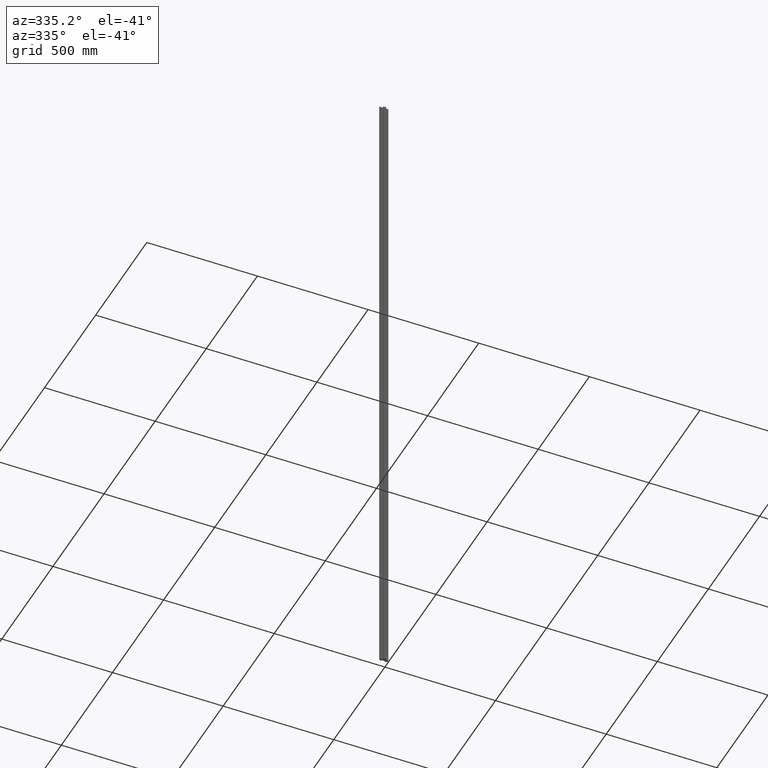
[diagram: clean part render]
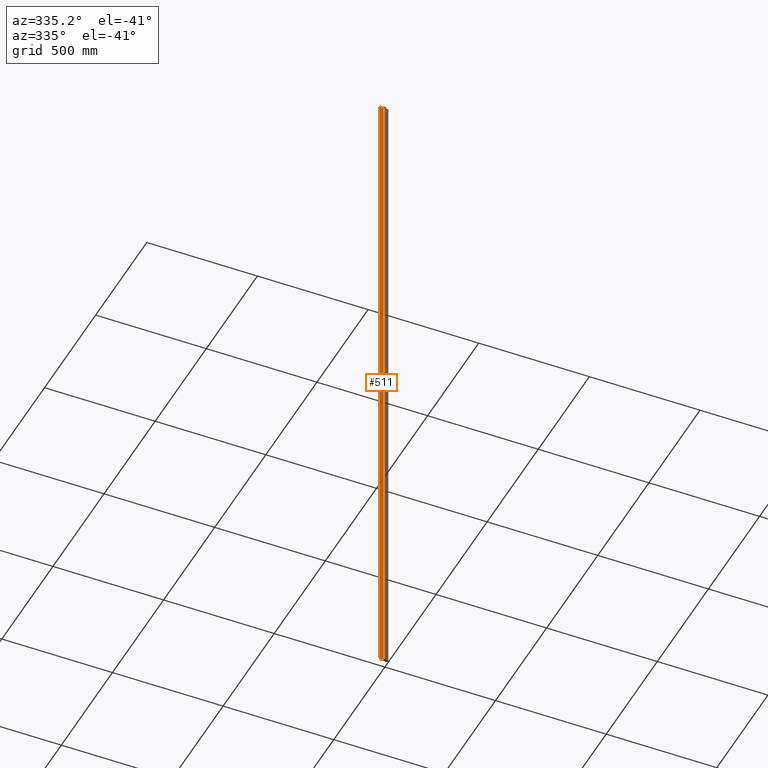
[diagram: same view with one face highlighted and labeled with its STEP entity id]
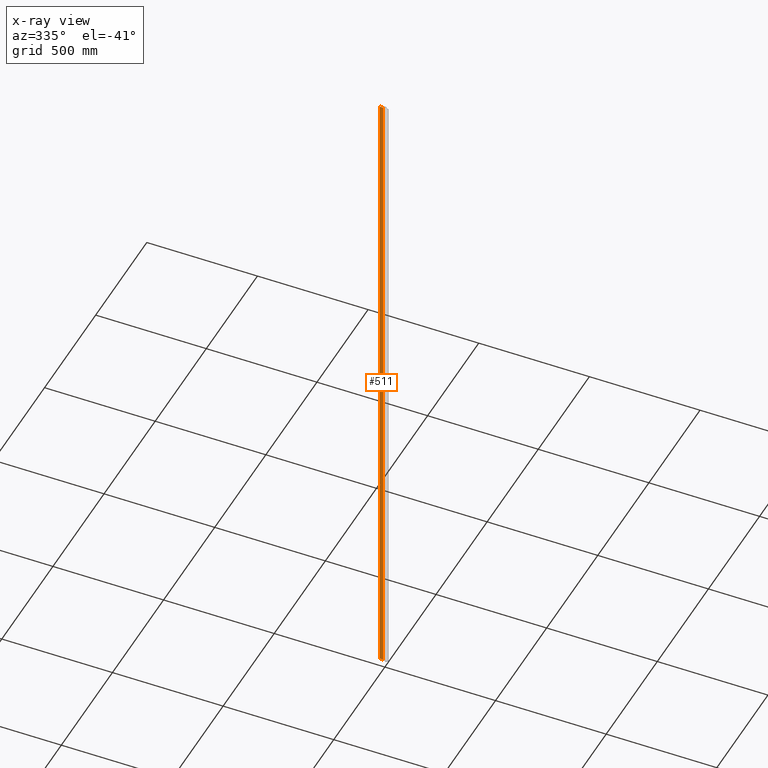
[diagram: x-ray of the same camera — body ghosted, the highlighted face saturated]
A machine part, auxiliary view. The second image highlights one B-rep face of the part: STEP entity #511.
The next image is the same camera in x-ray: the body ghosted, the highlighted face saturated — about 0% of this face is hidden behind the body in this view.
In plain terms, the highlighted planar face has unit normal (0, -1, 0).
Its self-contained STEP definition (entity closure, byte-faithful):
#45=FACE_OUTER_BOUND('',#71,.T.);
#71=EDGE_LOOP('',(#399,#400,#401,#402));
#129=LINE('',#821,#193);
#130=LINE('',#824,#194);
#131=LINE('',#826,#195);
#132=LINE('',#827,#196);
#193=VECTOR('',#672,10.);
#194=VECTOR('',#675,10.);
#195=VECTOR('',#676,10.);
#196=VECTOR('',#677,10.);
#243=VERTEX_POINT('',#817);
#244=VERTEX_POINT('',#819);
#245=VERTEX_POINT('',#823);
#246=VERTEX_POINT('',#825);
#309=EDGE_CURVE('',#243,#244,#129,.T.);
#310=EDGE_CURVE('',#243,#245,#130,.T.);
#311=EDGE_CURVE('',#246,#244,#131,.T.);
#312=EDGE_CURVE('',#245,#246,#132,.T.);
#399=ORIENTED_EDGE('',*,*,#310,.F.);
#400=ORIENTED_EDGE('',*,*,#309,.T.);
#401=ORIENTED_EDGE('',*,*,#311,.F.);
#402=ORIENTED_EDGE('',*,*,#312,.F.);
#487=PLANE('',#564);
#511=ADVANCED_FACE('',(#45),#487,.T.);
#564=AXIS2_PLACEMENT_3D('',#822,#673,#674);
#672=DIRECTION('',(0.,0.,1.));
#673=DIRECTION('center_axis',(1.48029764342872E-16,-1.,0.));
#674=DIRECTION('ref_axis',(1.,1.48029764342872E-16,0.));
#675=DIRECTION('',(-1.,-1.48029764342872E-16,0.));
#676=DIRECTION('',(1.,1.48029764342872E-16,0.));
#677=DIRECTION('',(0.,0.,1.));
#817=CARTESIAN_POINT('',(-4.00001609768209,7.99999687903501,0.));
#819=CARTESIAN_POINT('',(-4.00001609768209,7.99999687903501,3000.));
#821=CARTESIAN_POINT('',(-4.00001609768209,7.99999687903501,0.));
#822=CARTESIAN_POINT('Origin',(-19.0000132881609,7.999996879035,0.));
#823=CARTESIAN_POINT('',(-19.0000132881609,7.999996879035,0.));
#824=CARTESIAN_POINT('',(-4.00001609768209,7.99999687903501,0.));
#825=CARTESIAN_POINT('',(-19.0000132881609,7.999996879035,3000.));
#826=CARTESIAN_POINT('',(-4.00001609768209,7.99999687903501,3000.));
#827=CARTESIAN_POINT('',(-19.0000132881609,7.999996879035,0.));